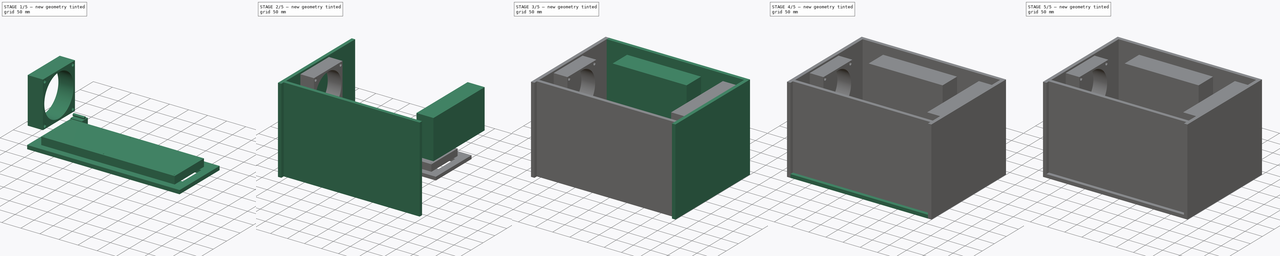
[diagram: build sequence overview — one tinted view per stage of 5, left to right]
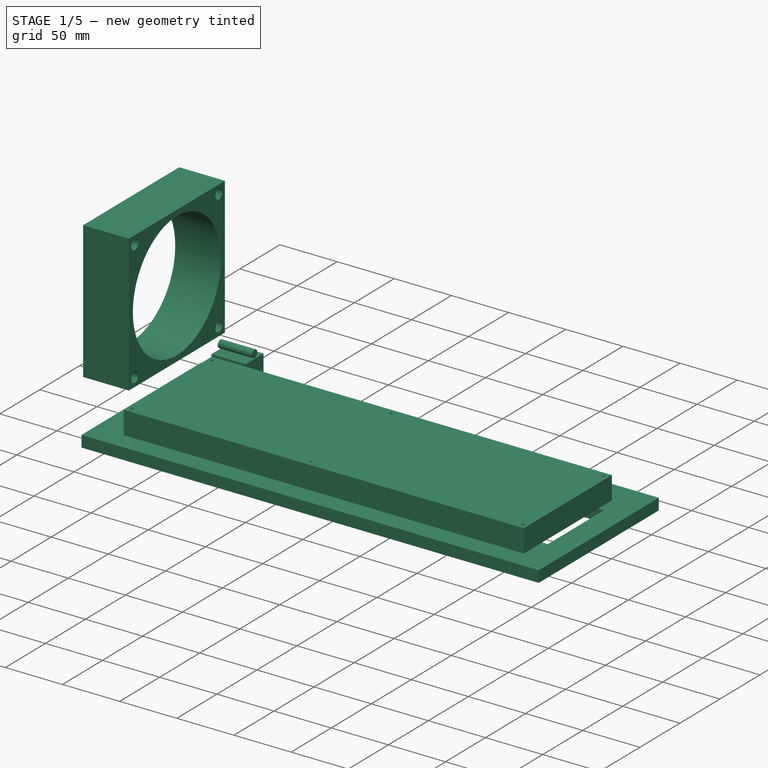
[diagram: stage 1 of 5 — iso view after this stage's code; geometry added in this stage tinted green]
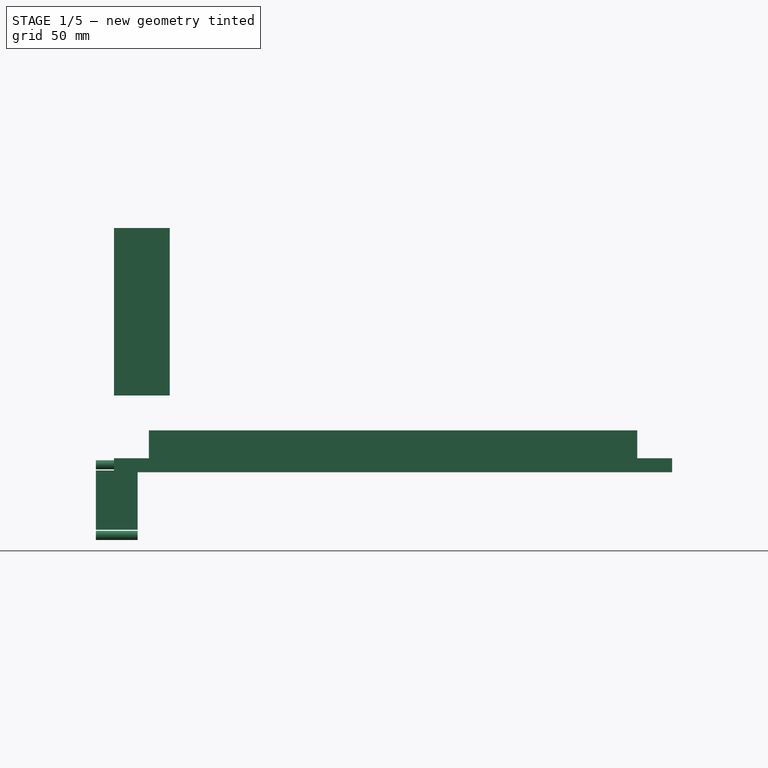
[diagram: stage 1 of 5 — front view after this stage's code; geometry added in this stage tinted green]
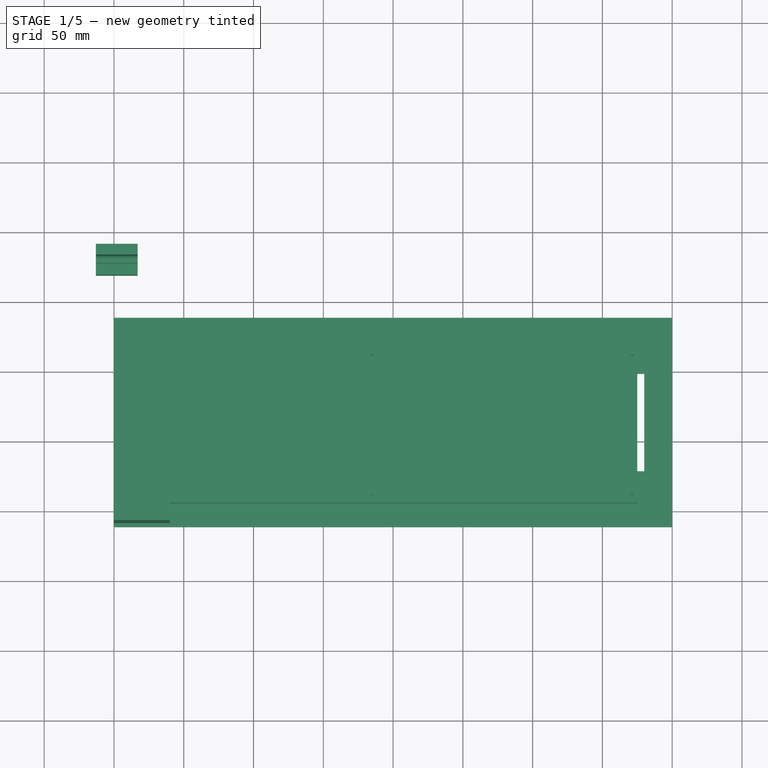
[diagram: stage 1 of 5 — top view after this stage's code; geometry added in this stage tinted green]
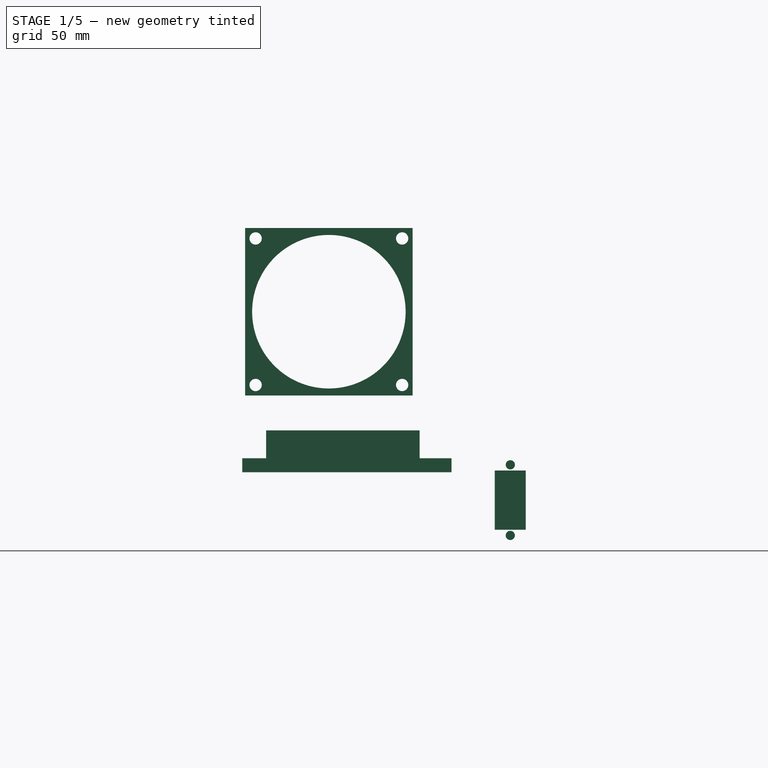
[diagram: stage 1 of 5 — right view after this stage's code; geometry added in this stage tinted green]
FCSTD DOCUMENT  (FreeCAD 0.16R6706 (Git))
Label: MSE-BOX
License: All rights reserved
LicenseURL: http://en.wikipedia.org/wiki/All_rights_reserved
objects: Sketcher::SketchObject×13, PartDesign::Pad×13, Part::Cylinder×2, Part::MultiFuse×2, Part::Cut×2, Part::Box×1
note: 46 computed .brp shape members not serialized (recipe doc carries the construction recipe); baked Part::Feature solids carry a one-line shape summary decoded from their .brp

FEATURE [Sketcher::SketchObject] Sketch011
  Placement = pos=(-200,0,175) rot=(0.57735,0.57735,0.57735;2.0944rad)
  sketch-geometry (9):
    g0: LineSegment StartX=-60 StartY=60 StartZ=0 EndX=60 EndY=60 EndZ=0
    g1: LineSegment StartX=60 StartY=60 StartZ=0 EndX=60 EndY=-60 EndZ=0
    g2: LineSegment StartX=60 StartY=-60 StartZ=0 EndX=-60 EndY=-60 EndZ=0
    g3: LineSegment StartX=-60 StartY=-60 StartZ=0 EndX=-60 EndY=60 EndZ=0
    g4: Circle CenterX=-52.5 CenterY=52.5 CenterZ=0 NormalX=0 NormalY=0 NormalZ=1 Radius=4.4
    g5: Circle CenterX=52.5 CenterY=52.5 CenterZ=0 NormalX=0 NormalY=0 NormalZ=1 Radius=4.4
    g6: Circle CenterX=-52.5 CenterY=-52.5 CenterZ=0 NormalX=0 NormalY=0 NormalZ=1 Radius=4.4
    g7: Circle CenterX=52.5 CenterY=-52.5 CenterZ=0 NormalX=0 NormalY=0 NormalZ=1 Radius=4.4
    g8: Circle CenterX=0 CenterY=0 CenterZ=0 NormalX=0 NormalY=0 NormalZ=1 Radius=55
  constraints (22):
    c: Coincident(g0,g1)
    c: Coincident(g1,g2)
    c: Coincident(g2,g3)
    c: Coincident(g3,g0)
    c: Horizontal(g2)
    c: Vertical(g1)
    c: Vertical(g3)
    c: Symmetric(g0,g0,g-2)
    c: Symmetric(g0,g1,g-1)
    c: DistanceY(g1,g1) = 120
    c: DistanceX(g0,g0) = 120
    c: Symmetric(g6,g7,g-2)
    c: Symmetric(g4,g5,g-2)
    c: Symmetric(g4,g6,g-1)
    c: DistanceX(g6,g7) = 105
    c: DistanceY(g6,g4) = 105
    c: Radius(g6) = 4.4
    c: Radius(g7) = 4.4
    c: Radius(g4) = 4.4
    c: Radius(g5) = 4.4
    c: Coincident(g8,g-1)
    c: Radius(g8) = 55
FEATURE [PartDesign::Pad] Pad011  label="风扇"
  Length = 40
  Length2 = 100
  Placement = pos=(-200,0,175) rot=(0.57735,0.57735,0.57735;2.0944rad)
  Sketch = -> Sketch011
  Type = 0
FEATURE [Sketcher::SketchObject] Sketch012
  Placement = pos=(-213,130,40) rot=(0.57735,0.57735,0.57735;2.0944rad)
  sketch-geometry (6):
    g0: Circle CenterX=0 CenterY=25.3 CenterZ=0 NormalX=0 NormalY=0 NormalZ=1 Radius=3.3
    g1: Circle CenterX=0 CenterY=-25.3 CenterZ=0 NormalX=0 NormalY=0 NormalZ=1 Radius=3.3
    g2: LineSegment StartX=-11.1 StartY=21.25 StartZ=0 EndX=11.1 EndY=21.25 EndZ=0
    g3: LineSegment StartX=11.1 StartY=21.25 StartZ=0 EndX=11.1 EndY=-21.25 EndZ=0
    g4: LineSegment StartX=11.1 StartY=-21.25 StartZ=0 EndX=-11.1 EndY=-21.25 EndZ=0
    g5: LineSegment StartX=-11.1 StartY=-21.25 StartZ=0 EndX=-11.1 EndY=21.25 EndZ=0
  constraints (16):
    c: Symmetric(g0,g1,g-1)
    c: Radius(g0) = 3.3
    c: Equal(g0,g1)
    c: Coincident(g2,g3)
    c: Coincident(g3,g4)
    c: Coincident(g4,g5)
    c: Coincident(g5,g2)
    c: Horizontal(g2)
    c: Horizontal(g4)
    c: Vertical(g3)
    c: Vertical(g5)
    c: Symmetric(g2,g3,g-1)
    c: DistanceY(g3,g3) = 42.5
    c: DistanceY(g1,g0) = 50.6
    c: DistanceX(g2,g2) = 22.2
    c: Symmetric(g2,g2,g-2)
FEATURE [PartDesign::Pad] Pad012  label="品形插座"
  Length = 30
  Length2 = 100
  Placement = pos=(-213,130,40) rot=(0.57735,0.57735,0.57735;2.0944rad)
  Sketch = -> Sketch012
  Type = 0
FEATURE [Sketcher::SketchObject] Sketch013
  Placement = pos=(0,0,60) rot=(0,0,1;0rad)
  sketch-geometry (8):
    g0: LineSegment StartX=-200 StartY=87.8982 StartZ=0 EndX=200 EndY=87.8982 EndZ=0
    g1: LineSegment StartX=200 StartY=87.8982 StartZ=0 EndX=200 EndY=-62.1018 EndZ=0
    g2: LineSegment StartX=200 StartY=-62.1018 StartZ=0 EndX=-200 EndY=-62.1018 EndZ=0
    g3: LineSegment StartX=-200 StartY=-62.1018 StartZ=0 EndX=-200 EndY=87.8982 EndZ=0
    g4: LineSegment StartX=-180 StartY=47.8982 StartZ=0 EndX=180 EndY=47.8982 EndZ=0
    g5: LineSegment StartX=180 StartY=47.8982 StartZ=0 EndX=180 EndY=-22.1018 EndZ=0
    g6: LineSegment StartX=180 StartY=-22.1018 StartZ=0 EndX=-180 EndY=-22.1018 EndZ=0
    g7: LineSegment StartX=-180 StartY=-22.1018 StartZ=0 EndX=-180 EndY=47.8982 EndZ=0
  constraints (23):
    c: Coincident(g0,g1)
    c: Coincident(g1,g2)
    c: Coincident(g2,g3)
    c: Coincident(g3,g0)
    c: Horizontal(g0)
    c: Horizontal(g2)
    c: Vertical(g1)
    c: Vertical(g3)
    c: DistanceX(g0,g0) = 400
    c: Symmetric(g0,g0,g-2)
    c: DistanceY(g1,g1) = 150
    c: Coincident(g4,g5)
    c: Coincident(g5,g6)
    c: Coincident(g6,g7)
    c: Coincident(g7,g4)
    c: Horizontal(g4)
    c: Horizontal(g6)
    c: Vertical(g5)
    c: Vertical(g7)
    c: Distance(g4,g3) = 20
    c: Distance(g4,g1) = 20
    c: Distance(g4,g0) = 40
    c: Distance(g5,g2) = 40
FEATURE [PartDesign::Pad] Pad013  label="串口板支架"
  Length = 10
  Length2 = 100
  Placement = pos=(0,0,60) rot=(0,0,1;0rad)
  Sketch = -> Sketch013
  Type = 0
FEATURE [Sketcher::SketchObject] Sketch014
  Placement = pos=(0,10,70) rot=(0,0,1;0rad)
  sketch-geometry (10):
    g0: LineSegment StartX=-175 StartY=55 StartZ=0 EndX=175 EndY=55 EndZ=0
    g1: LineSegment StartX=175 StartY=55 StartZ=0 EndX=175 EndY=-55 EndZ=0
    g2: LineSegment StartX=175 StartY=-55 StartZ=0 EndX=-175 EndY=-55 EndZ=0
    g3: LineSegment StartX=-175 StartY=-55 StartZ=0 EndX=-175 EndY=55 EndZ=0
    g4: Circle CenterX=170.934 CenterY=50 CenterZ=0 NormalX=0 NormalY=0 NormalZ=1 Radius=1.3
    g5: Circle CenterX=170.934 CenterY=-50 CenterZ=0 NormalX=0 NormalY=0 NormalZ=1 Radius=1.3
    g6: Circle CenterX=-15.0664 CenterY=50 CenterZ=0 NormalX=0 NormalY=0 NormalZ=1 Radius=1.3
    g7: Circle CenterX=-15.0664 CenterY=-50 CenterZ=0 NormalX=0 NormalY=0 NormalZ=1 Radius=1.3
    g8: Circle CenterX=-171.066 CenterY=-50 CenterZ=0 NormalX=0 NormalY=0 NormalZ=1 Radius=1.3
    g9: Circle CenterX=-171.066 CenterY=50 CenterZ=0 NormalX=0 NormalY=0 NormalZ=1 Radius=1.3
  constraints (26):
    c: Coincident(g0,g1)
    c: Coincident(g1,g2)
    c: Coincident(g2,g3)
    c: Coincident(g3,g0)
    c: Horizontal(g0)
    c: Horizontal(g2)
    c: Vertical(g1)
    c: Vertical(g3)
    c: DistanceX(g0,g0) = 350
    c: DistanceY(g1,g1) = 110
    c: Symmetric(g0,g0,g-2)
    c: Radius(g4) = 1.3
    c: Radius(g5) = 1.3
    c: DistanceY(g5,g4) = 100
    c: Symmetric(g0,g1,g-1)
    c: Symmetric(g4,g5,g-1)
    c: Symmetric(g6,g7,g-1)
    c: Symmetric(g9,g8,g-1)
    c: DistanceY(g8,g9) = 100
    c: DistanceY(g7,g6) = 100
    c: Radius(g9) = 1.3
    c: Radius(g8) = 1.3
    c: Radius(g7) = 1.3
    c: Radius(g6) = 1.3
    c: DistanceX(g8,g7) = 156
    c: DistanceX(g7,g5) = 186
FEATURE [PartDesign::Pad] Pad014  label="串口板模型"
  Length = 20
  Length2 = 100
  Placement = pos=(0,10,70) rot=(0,0,1;0rad)
  Sketch = -> Sketch014
  Type = 0
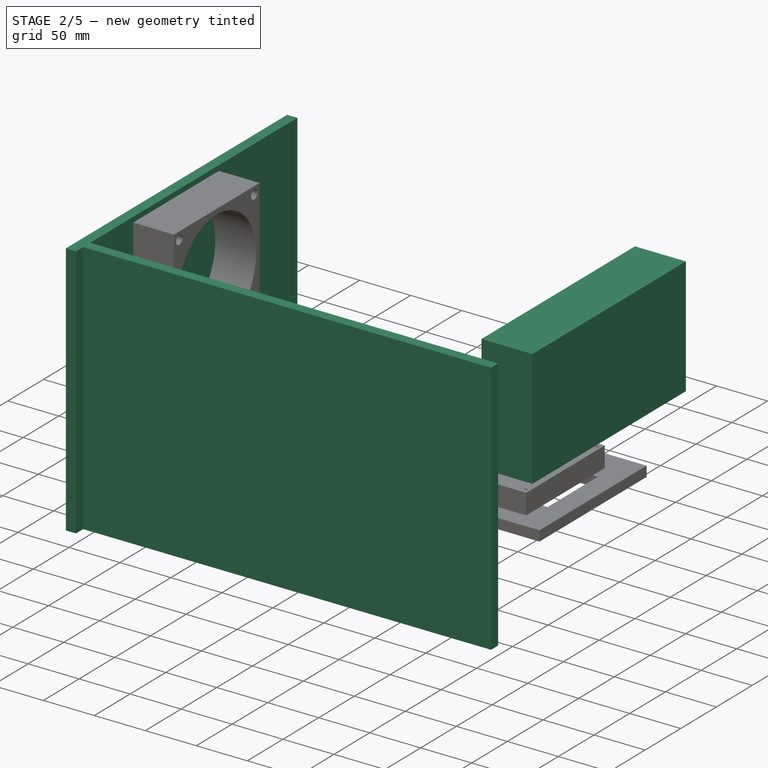
[diagram: stage 2 of 5 — iso view after this stage's code; geometry added in this stage tinted green]
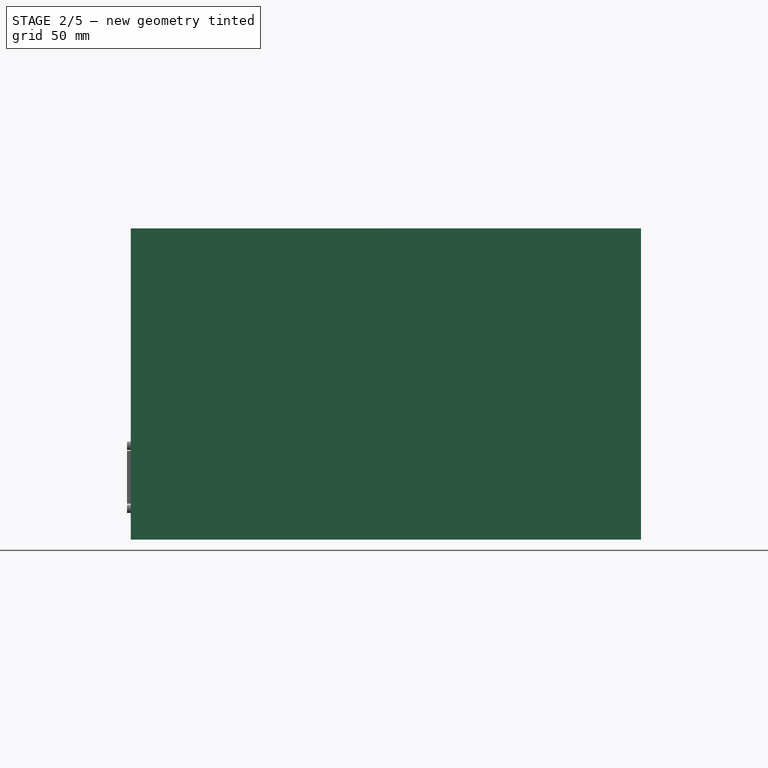
[diagram: stage 2 of 5 — front view after this stage's code; geometry added in this stage tinted green]
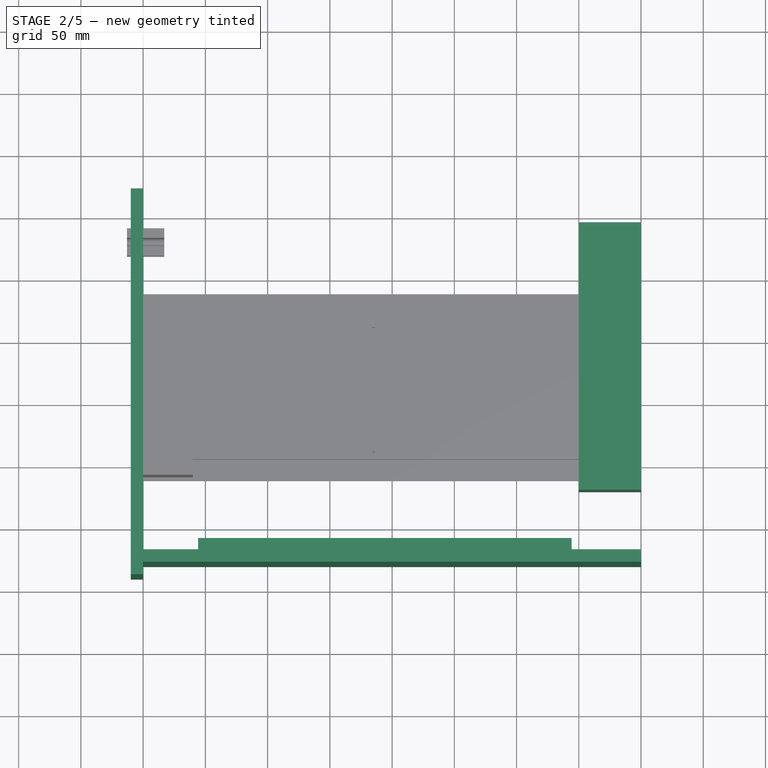
[diagram: stage 2 of 5 — top view after this stage's code; geometry added in this stage tinted green]
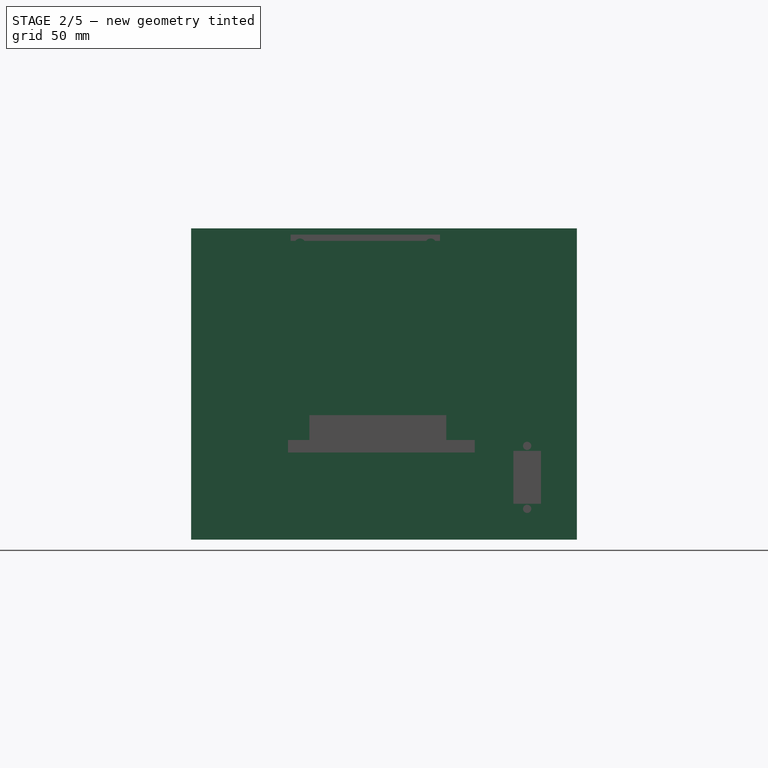
[diagram: stage 2 of 5 — right view after this stage's code; geometry added in this stage tinted green]
FEATURE [Sketcher::SketchObject] Sketch006  label="左侧面板"
  Placement = pos=(-210,0,0) rot=(0.57735,0.57735,0.57735;2.0944rad)
  sketch-geometry (4):
    g0: LineSegment StartX=-140 StartY=240 StartZ=0 EndX=170 EndY=240 EndZ=0
    g1: LineSegment StartX=170 StartY=240 StartZ=0 EndX=170 EndY=-10 EndZ=0
    g2: LineSegment StartX=170 StartY=-10 StartZ=0 EndX=-140 EndY=-10 EndZ=0
    g3: LineSegment StartX=-140 StartY=-10 StartZ=0 EndX=-140 EndY=240 EndZ=0
  constraints (12):
    c: Coincident(g0,g1)
    c: Coincident(g1,g2)
    c: Coincident(g2,g3)
    c: Coincident(g3,g0)
    c: Horizontal(g0)
    c: Horizontal(g2)
    c: Vertical(g1)
    c: Vertical(g3)
    c: DistanceY(g-1,g1) = -10
    c: DistanceX(g-1,g0) = 170
    c: DistanceX(g0,g-1) = 140
    c: DistanceY(g1,g1) = 250
FEATURE [PartDesign::Pad] Pad006  label="左侧"
  Length = 10
  Length2 = 100
  Placement = pos=(-210,0,0) rot=(0.57735,0.57735,0.57735;2.0944rad)
  Sketch = -> Sketch006
  Type = 0
FEATURE [Sketcher::SketchObject] Sketch007
  Placement = pos=(0,-120,0) rot=(1,0,0;1.5708rad)
  sketch-geometry (4):
    g0: LineSegment StartX=-200 StartY=240 StartZ=0 EndX=200 EndY=240 EndZ=0
    g1: LineSegment StartX=200 StartY=240 StartZ=0 EndX=200 EndY=-10 EndZ=0
    g2: LineSegment StartX=200 StartY=-10 StartZ=0 EndX=-200 EndY=-10 EndZ=0
    g3: LineSegment StartX=-200 StartY=-10 StartZ=0 EndX=-200 EndY=240 EndZ=0
  constraints (12):
    c: Coincident(g0,g1)
    c: Coincident(g1,g2)
    c: Coincident(g2,g3)
    c: Coincident(g3,g0)
    c: Horizontal(g0)
    c: Horizontal(g2)
    c: Vertical(g1)
    c: Vertical(g3)
    c: DistanceX(g0,g0) = 400
    c: Symmetric(g0,g0,g-2)
    c: DistanceY(g1,g1) = 250
    c: DistanceY(g-1,g1) = -10
FEATURE [PartDesign::Pad] Pad007  label="前面板"
  Length = 10
  Length2 = 100
  Placement = pos=(0,-120,0) rot=(1,0,0;1.5708rad)
  Sketch = -> Sketch007
  Type = 0
FEATURE [Part::Box] Box  label="5V电源"
  Height = 115
  Length = 50
  Placement = pos=(150,-72,115) rot=(0,0,1;0rad)
  Width = 215
FEATURE [Sketcher::SketchObject] Sketch009
  Placement = pos=(144.196,-120,190) rot=(-0.57735,0.57735,0.57735;2.0944rad)
  sketch-geometry (82):
    g0: LineSegment StartX=0 StartY=300 StartZ=0 EndX=121 EndY=300 EndZ=0
    g1: LineSegment StartX=121 StartY=300 StartZ=0 EndX=121 EndY=0 EndZ=0
    g2: LineSegment StartX=121 StartY=0 StartZ=0 EndX=0 EndY=0 EndZ=0
    g3: LineSegment StartX=0 StartY=0 StartZ=0 EndX=0 EndY=300 EndZ=0
    g4: Circle CenterX=11.81 CenterY=19.93 CenterZ=0 NormalX=0 NormalY=0 NormalZ=1 Radius=7.1
    g5: Circle CenterX=11.81 CenterY=39.93 CenterZ=0 NormalX=0 NormalY=0 NormalZ=1 Radius=7.1
    g6: Circle CenterX=11.81 CenterY=59.93 CenterZ=0 NormalX=0 NormalY=0 NormalZ=1 Radius=7.1
    g7: Circle CenterX=11.81 CenterY=79.93 CenterZ=0 NormalX=0 NormalY=0 NormalZ=1 Radius=7.1
    g8: Circle CenterX=11.81 CenterY=99.93 CenterZ=0 NormalX=0 NormalY=0 NormalZ=1 Radius=7.1
    g9: Circle CenterX=11.81 CenterY=119.93 CenterZ=0 NormalX=0 NormalY=0 NormalZ=1 Radius=7.1
    g10: Circle CenterX=11.81 CenterY=146.89 CenterZ=0 NormalX=0 NormalY=0 NormalZ=1 Radius=7.1
    g11: Circle CenterX=11.81 CenterY=166.89 CenterZ=0 NormalX=0 NormalY=0 NormalZ=1 Radius=7.1
    g12: Circle CenterX=11.81 CenterY=186.89 CenterZ=0 NormalX=0 NormalY=0 NormalZ=1 Radius=7.1
    g13: Circle CenterX=11.81 CenterY=246.89 CenterZ=0 NormalX=0 NormalY=0 NormalZ=1 Radius=7.1
    g14: Circle CenterX=109.58 CenterY=246.89 CenterZ=0 NormalX=0 NormalY=0 NormalZ=1 Radius=7.1
    g15: Circle CenterX=11.81 CenterY=226.89 CenterZ=0 NormalX=0 NormalY=0 NormalZ=1 Radius=7.1
    g16: Circle CenterX=11.81 CenterY=206.89 CenterZ=0 NormalX=0 NormalY=0 NormalZ=1 Radius=7.1
    g17: Circle CenterX=109.58 CenterY=186.89 CenterZ=0 NormalX=0 NormalY=0 NormalZ=1 Radius=7.1
    g18: Circle CenterX=109.58 CenterY=226.89 CenterZ=0 NormalX=0 NormalY=0 NormalZ=1 Radius=7.1
    g19: Circle CenterX=109.58 CenterY=206.89 CenterZ=0 NormalX=0 NormalY=0 NormalZ=1 Radius=7.1
    g20: Circle CenterX=109.58 CenterY=166.89 CenterZ=0 NormalX=0 NormalY=0 NormalZ=1 Radius=7.1
    g21: Circle CenterX=109.63 CenterY=146.89 CenterZ=0 NormalX=0 NormalY=0 NormalZ=1 Radius=7.1
    g22: Circle CenterX=109.63 CenterY=119.95 CenterZ=0 NormalX=0 NormalY=0 NormalZ=1 Radius=7.1
    g23: Circle CenterX=109.63 CenterY=99.95 CenterZ=0 NormalX=0 NormalY=0 NormalZ=1 Radius=7.1
    g24: Circle CenterX=109.63 CenterY=79.95 CenterZ=0 NormalX=0 NormalY=0 NormalZ=1 Radius=7.1
    g25: Circle CenterX=109.63 CenterY=59.95 CenterZ=0 NormalX=0 NormalY=0 NormalZ=1 Radius=7.1
    g26: Circle CenterX=109.63 CenterY=39.95 CenterZ=0 NormalX=0 NormalY=0 NormalZ=1 Radius=7.1
    g27: Circle CenterX=109.63 CenterY=19.95 CenterZ=0 NormalX=0 NormalY=0 NormalZ=1 Radius=7.1
    g28: Circle CenterX=5.9944 CenterY=5.9944 CenterZ=0 NormalX=0 NormalY=0 NormalZ=1 Radius=1.3
    g29: Circle CenterX=5.9944 CenterY=134 CenterZ=0 NormalX=0 NormalY=0 NormalZ=1 Radius=1.3
    g30: Circle CenterX=5.9944 CenterY=269.79 CenterZ=0 NormalX=0 NormalY=0 NormalZ=1 Radius=1.3
    g31: Circle CenterX=115 CenterY=269.79 CenterZ=0 NormalX=0 NormalY=0 NormalZ=1 Radius=1.3
    g32: Circle CenterX=115 CenterY=5.9944 CenterZ=0 NormalX=0 NormalY=0 NormalZ=1 Radius=1.3
    g33: Circle CenterX=115 CenterY=134 CenterZ=0 NormalX=0 NormalY=0 NormalZ=1 Radius=1.3
    g34: LineSegment StartX=33.87 StartY=26.57 StartZ=0 EndX=51.87 EndY=26.57 EndZ=0
    g35: LineSegment StartX=51.87 StartY=26.57 StartZ=0 EndX=51.87 EndY=19.57 EndZ=0
    g36: LineSegment StartX=51.87 StartY=19.57 StartZ=0 EndX=33.87 EndY=19.57 EndZ=0
    g37: LineSegment StartX=33.87 StartY=19.57 StartZ=0 EndX=33.87 EndY=26.57 EndZ=0
    g38: LineSegment StartX=33.87 StartY=66.47 StartZ=0 EndX=51.87 EndY=66.47 EndZ=0
    g39: LineSegment StartX=51.87 StartY=66.47 StartZ=0 EndX=51.87 EndY=59.47 EndZ=0
    g40: LineSegment StartX=51.87 StartY=59.47 StartZ=0 EndX=33.87 EndY=59.47 EndZ=0
    g41: LineSegment StartX=33.87 StartY=59.47 StartZ=0 EndX=33.87 EndY=66.47 EndZ=0
    g42: LineSegment StartX=33.87 StartY=86.38 StartZ=0 EndX=51.87 EndY=86.38 EndZ=0
    g43: LineSegment StartX=51.87 StartY=86.38 StartZ=0 EndX=51.87 EndY=79.38 EndZ=0
    g44: LineSegment StartX=51.87 StartY=79.38 StartZ=0 EndX=33.87 EndY=79.38 EndZ=0
    g45: LineSegment StartX=33.87 StartY=79.38 StartZ=0 EndX=33.87 EndY=86.38 EndZ=0
    g46: LineSegment StartX=33.87 StartY=46.4 StartZ=0 EndX=51.87 EndY=46.4 EndZ=0
    g47: LineSegment StartX=51.87 StartY=46.4 StartZ=0 EndX=51.87 EndY=39.4 EndZ=0
    g48: LineSegment StartX=51.87 StartY=39.4 StartZ=0 EndX=33.87 EndY=39.4 EndZ=0
    g49: LineSegment StartX=33.87 StartY=39.4 StartZ=0 EndX=33.87 EndY=46.4 EndZ=0
    g50: LineSegment StartX=33.87 StartY=153.36 StartZ=0 EndX=51.87 EndY=153.36 EndZ=0
    g51: LineSegment StartX=51.87 StartY=153.36 StartZ=0 EndX=51.87 EndY=146.36 EndZ=0
    g52: LineSegment StartX=51.87 StartY=146.36 StartZ=0 EndX=33.87 EndY=146.36 EndZ=0
    g53: LineSegment StartX=33.87 StartY=146.36 StartZ=0 EndX=33.87 EndY=153.36 EndZ=0
    g54: LineSegment StartX=33.87 StartY=126.46 StartZ=0 EndX=51.87 EndY=126.46 EndZ=0
    g55: LineSegment StartX=51.87 StartY=126.46 StartZ=0 EndX=51.87 EndY=119.46 EndZ=0
    g56: LineSegment StartX=51.87 StartY=119.46 StartZ=0 EndX=33.87 EndY=119.46 EndZ=0
    g57: LineSegment StartX=33.87 StartY=119.46 StartZ=0 EndX=33.87 EndY=126.46 EndZ=0
    g58: LineSegment StartX=33.87 StartY=106.43 StartZ=0 EndX=51.87 EndY=106.43 EndZ=0
    g59: LineSegment StartX=51.87 StartY=106.43 StartZ=0 EndX=51.87 EndY=99.43 EndZ=0
    g60: LineSegment StartX=51.87 StartY=99.43 StartZ=0 EndX=33.87 EndY=99.43 EndZ=0
    g61: LineSegment StartX=33.87 StartY=99.43 StartZ=0 EndX=33.87 EndY=106.43 EndZ=0
    g62: LineSegment StartX=33.87 StartY=173.36 StartZ=0 EndX=51.87 EndY=173.36 EndZ=0
    g63: LineSegment StartX=51.87 StartY=173.36 StartZ=0 EndX=51.87 EndY=166.36 EndZ=0
    g64: LineSegment StartX=51.87 StartY=166.36 StartZ=0 EndX=33.87 EndY=166.36 EndZ=0
    g65: LineSegment StartX=33.87 StartY=166.36 StartZ=0 EndX=33.87 EndY=173.36 EndZ=0
    g66: LineSegment StartX=51.87 StartY=213.34 StartZ=0 EndX=33.87 EndY=213.34 EndZ=0
    g67: LineSegment StartX=33.87 StartY=213.34 StartZ=0 EndX=33.87 EndY=206.34 EndZ=0
    g68: LineSegment StartX=33.87 StartY=206.34 StartZ=0 EndX=51.87 EndY=206.34 EndZ=0
    g69: LineSegment StartX=51.87 StartY=206.34 StartZ=0 EndX=51.87 EndY=213.34 EndZ=0
    g70: LineSegment StartX=33.87 StartY=193.39 StartZ=0 EndX=51.87 EndY=193.39 EndZ=0
    g71: LineSegment StartX=51.87 StartY=193.39 StartZ=0 EndX=51.87 EndY=186.39 EndZ=0
    g72: LineSegment StartX=51.87 StartY=186.39 StartZ=0 EndX=33.87 EndY=186.39 EndZ=0
    g73: LineSegment StartX=33.87 StartY=186.39 StartZ=0 EndX=33.87 EndY=193.39 EndZ=0
    g74: LineSegment StartX=33.87 StartY=253.52 StartZ=0 EndX=51.87 EndY=253.52 EndZ=0
    g75: LineSegment StartX=51.87 StartY=253.52 StartZ=0 EndX=51.87 EndY=246.52 EndZ=0
    g76: LineSegment StartX=51.87 StartY=246.52 StartZ=0 EndX=33.87 EndY=246.52 EndZ=0
    g77: LineSegment StartX=33.87 StartY=246.52 StartZ=0 EndX=33.87 EndY=253.52 EndZ=0
    g78: LineSegment StartX=33.87 StartY=233.4 StartZ=0 EndX=51.87 EndY=233.4 EndZ=0
    g79: LineSegment StartX=51.87 StartY=233.4 StartZ=0 EndX=51.87 EndY=226.4 EndZ=0
    g80: LineSegment StartX=51.87 StartY=226.4 StartZ=0 EndX=33.87 EndY=226.4 EndZ=0
    g81: LineSegment StartX=33.87 StartY=226.4 StartZ=0 EndX=33.87 EndY=233.4 EndZ=0
  constraints (234):
    c: Coincident(g0,g1)
    c: Coincident(g1,g2)
    c: Coincident(g2,g3)
    c: Coincident(g3,g0)
    c: Horizontal(g0)
    c: Horizontal(g2)
    c: Vertical(g1)
    c: Vertical(g3)
    c: Coincident(g2,g-1)
    c: DistanceX(g0) = 121
    c: DistanceY(g0) = 300
    c: Radius(g4) = 7.1
    c: DistanceX(g4) = 11.81
    c: DistanceY(g4) = 19.93
    c: Equal(g5,g6)
    c: DistanceY(g5) = 39.93
    c: DistanceY(g6) = 59.93
    c: Equal(g6,g7)
    c: DistanceY(g7) = 79.93
    c: Equal(g7,g8)
    c: Equal(g8,g9)
    c: Equal(g9,g10)
    c: DistanceY(g8) = 99.93
    c: DistanceY(g9) = 119.93
    c: DistanceY(g10) = 146.89
    c: Equal(g10,g11)
    c: Equal(g11,g12)
    c: DistanceY(g11) = 166.89
    c: DistanceY(g12) = 186.89
    c: Equal(g12,g16)
    c: Equal(g16,g15)
    c: Equal(g15,g14)
    c: Equal(g14,g13)
    c: DistanceY(g16) = 206.89
    c: DistanceY(g15) = 226.89
    c: DistanceY(g13) = 246.89
    c: DistanceX(g14) = 109.58
    c: DistanceY(g14) = 246.89
    c: DistanceX(g18) = 109.58
    c: DistanceY(g18) = 226.89
    c: Equal(g14,g18)
    c: Equal(g18,g19)
    c: Equal(g19,g17)
    c: Equal(g17,g20)
    c: Equal(g20,g21)
    c: Equal(g21,g22)
    c: Equal(g22,g23)
    c: Equal(g23,g24)
    c: Equal(g24,g25)
    c: Equal(g25,g26)
    c: Equal(g26,g27)
    c: DistanceX(g19) = 109.58
    c: DistanceY(g19) = 206.89
    c: DistanceX(g27) = 109.63
    c: DistanceY(g27) = 19.95
    c: DistanceX(g26) = 109.63
    c: DistanceY(g26) = 39.95
    c: DistanceX(g25) = 109.63
    c: DistanceY(g25) = 59.95
    c: DistanceX(g24) = 109.63
    c: DistanceY(g24) = 79.95
    c: DistanceX(g23) = 109.63
    c: DistanceY(g23) = 99.95
    c: DistanceX(g22) = 109.63
    c: DistanceY(g22) = 119.95
    c: DistanceX(g21) = 109.63
    c: DistanceY(g21) = 146.89
    c: DistanceX(g20) = 109.58
    c: DistanceY(g20) = 166.89
    c: DistanceX(g17) = 109.58
    c: DistanceY(g17) = 186.89
    c: Radius(g28) = 1.3
    c: DistanceX(g28) = 5.9944
    c: DistanceY(g28) = 5.9944
    c: Equal(g28,g29)
    c: Equal(g29,g30)
    c: Equal(g30,g32)
    c: Equal(g32,g33)
    c: Equal(g33,g31)
    c: Radius(g5) = 7.1
    c: DistanceX(g29) = 5.9944
    c: DistanceY(g29) = 134
    c: DistanceX(g30) = 5.9944
    c: DistanceY(g30) = 269.79
    c: DistanceX(g32) = 115
    c: DistanceY(g32) = 5.9944
    c: DistanceX(g33) = 115
    c: DistanceY(g33) = 134
    c: DistanceX(g31) = 115
    c: DistanceY(g31) = 269.79
    c: Coincident(g34,g35)
    c: Coincident(g35,g36)
    c: Coincident(g36,g37)
    c: Coincident(g37,g34)
    c: Horizontal(g34)
    c: Horizontal(g36)
    c: Vertical(g35)
    c: Vertical(g37)
    c: DistanceX(g34) = 51.87
    c: DistanceY(g34) = 26.57
    c: Coincident(g38,g39)
    c: Coincident(g39,g40)
    c: Coincident(g40,g41)
    c: Coincident(g41,g38)
    c: Horizontal(g38)
    c: Horizontal(g40)
    c: Vertical(g39)
    c: Vertical(g41)
    c: DistanceX(g36,g36) = 18
    c: DistanceY(g35,g35) = 7
    c: Equal(g36,g38)
    c: Equal(g35,g39)
    c: Coincident(g42,g43)
    c: Coincident(g43,g44)
    c: Coincident(g44,g45)
    c: Coincident(g45,g42)
    c: Horizontal(g42)
    c: Horizontal(g44)
    c: Vertical(g43)
    c: Vertical(g45)
    c: Coincident(g46,g47)
    c: Coincident(g47,g48)
    c: Coincident(g48,g49)
    c: Coincident(g49,g46)
    c: Horizontal(g46)
    c: Horizontal(g48)
    c: Vertical(g47)
    c: Vertical(g49)
    c: Coincident(g50,g51)
    c: Coincident(g51,g52)
    c: Coincident(g52,g53)
    c: Coincident(g53,g50)
    c: Horizontal(g50)
    c: Horizontal(g52)
    c: Vertical(g51)
    c: Vertical(g53)
    c: Coincident(g54,g55)
    c: Coincident(g55,g56)
    c: Coincident(g56,g57)
    c: Coincident(g57,g54)
    c: Horizontal(g54)
    c: Horizontal(g56)
    c: Vertical(g55)
    c: Vertical(g57)
    c: Coincident(g58,g59)
    c: Coincident(g59,g60)
    c: Coincident(g60,g61)
    c: Coincident(g61,g58)
    c: Horizontal(g58)
    c: Horizontal(g60)
    c: Vertical(g59)
    c: Vertical(g61)
    c: Coincident(g62,g63)
    c: Coincident(g63,g64)
    c: Coincident(g64,g65)
    c: Coincident(g65,g62)
    c: Horizontal(g62)
    c: Horizontal(g64)
    c: Vertical(g63)
    c: Vertical(g65)
    c: Coincident(g66,g67)
    c: Coincident(g67,g68)
    c: Coincident(g68,g69)
    c: Coincident(g69,g66)
    c: Horizontal(g66)
    c: Horizontal(g68)
    c: Vertical(g67)
    c: Vertical(g69)
    c: Coincident(g70,g71)
    c: Coincident(g71,g72)
    c: Coincident(g72,g73)
    c: Coincident(g73,g70)
    c: Horizontal(g70)
    c: Horizontal(g72)
    c: Vertical(g71)
    c: Vertical(g73)
    c: Coincident(g74,g75)
    c: Coincident(g75,g76)
    c: Coincident(g76,g77)
    c: Coincident(g77,g74)
    c: Horizontal(g74)
    c: Horizontal(g76)
    c: Vertical(g75)
    c: Vertical(g77)
    c: Coincident(g78,g79)
    c: Coincident(g79,g80)
    c: Coincident(g80,g81)
    c: Coincident(g81,g78)
    c: Horizontal(g78)
    c: Horizontal(g80)
    c: Vertical(g79)
    c: Vertical(g81)
    c: Equal(g38,g42)
    c: Equal(g42,g58)
    c: Equal(g58,g46)
    c: Equal(g39,g59)
    c: Equal(g59,g43)
    c: Equal(g43,g47)
    c: DistanceX(g38) = 51.87
    c: DistanceY(g38) = 66.47
    c: DistanceX(g58) = 51.87
    c: DistanceY(g58) = 106.43
    c: DistanceX(g42) = 51.87
    c: DistanceY(g42) = 86.38
    c: DistanceX(g46) = 51.87
    c: DistanceY(g46) = 46.4
    c: Equal(g36,g64)
    c: Equal(g64,g54)
    c: Equal(g54,g50)
    c: Equal(g50,g70)
    c: Equal(g70,g66)
    c: Equal(g66,g78)
    c: Equal(g78,g74)
    c: Equal(g35,g63)
    c: Equal(g63,g55)
    c: Equal(g55,g51)
    c: Equal(g51,g71)
    c: Equal(g71,g67)
    c: Equal(g67,g79)
    c: Equal(g79,g77)
    c: DistanceX(g62) = 51.87
    c: DistanceY(g62) = 173.36
    c: DistanceX(g54) = 51.87
    c: DistanceY(g54) = 126.46
    c: DistanceX(g50) = 51.87
    c: DistanceY(g50) = 153.36
    c: DistanceX(g70) = 51.87
    c: DistanceY(g70) = 193.39
    c: DistanceX(g78) = 51.87
    c: DistanceY(g78) = 233.4
    c: DistanceX(g74) = 51.87
    c: DistanceY(g74) = 253.52
    c: DistanceX(g66) = 51.87
    c: DistanceY(g66) = 213.34
FEATURE [PartDesign::Pad] Pad009  label="电源板"
  Length = 10
  Length2 = 100
  Placement = pos=(144.196,-120,190) rot=(-0.57735,0.57735,0.57735;2.0944rad)
  Sketch = -> Sketch009
  Type = 0
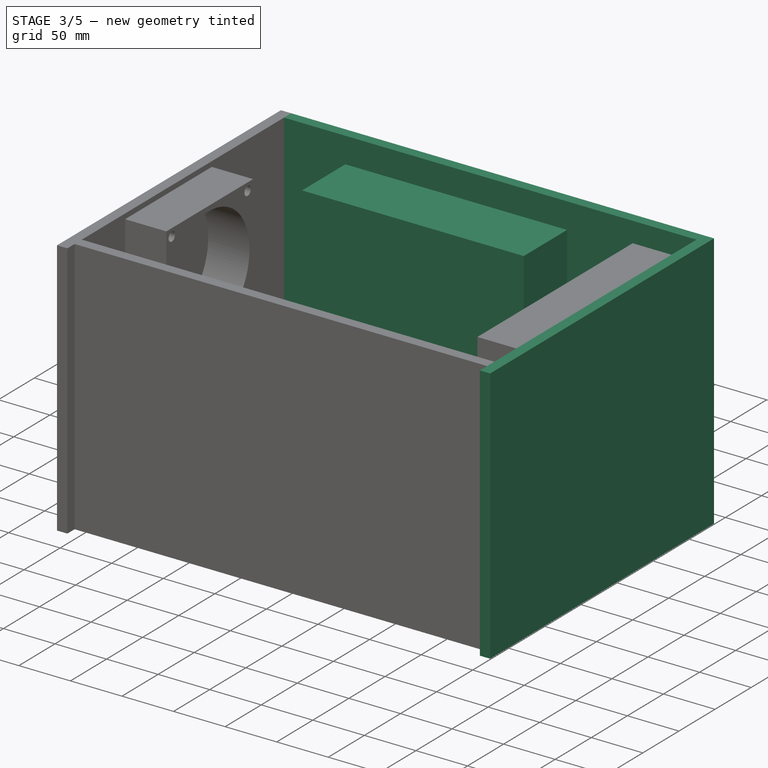
[diagram: stage 3 of 5 — iso view after this stage's code; geometry added in this stage tinted green]
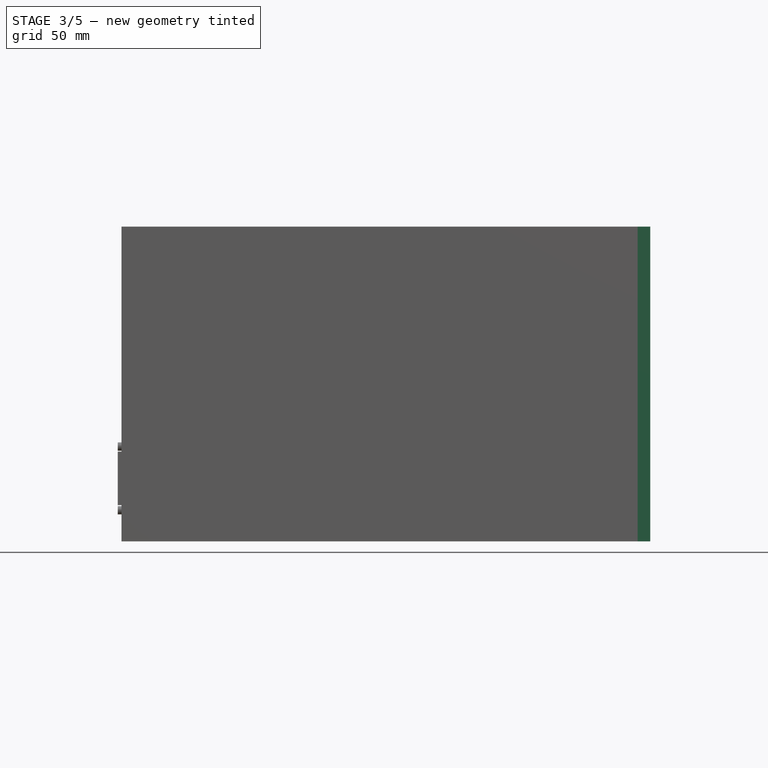
[diagram: stage 3 of 5 — front view after this stage's code; geometry added in this stage tinted green]
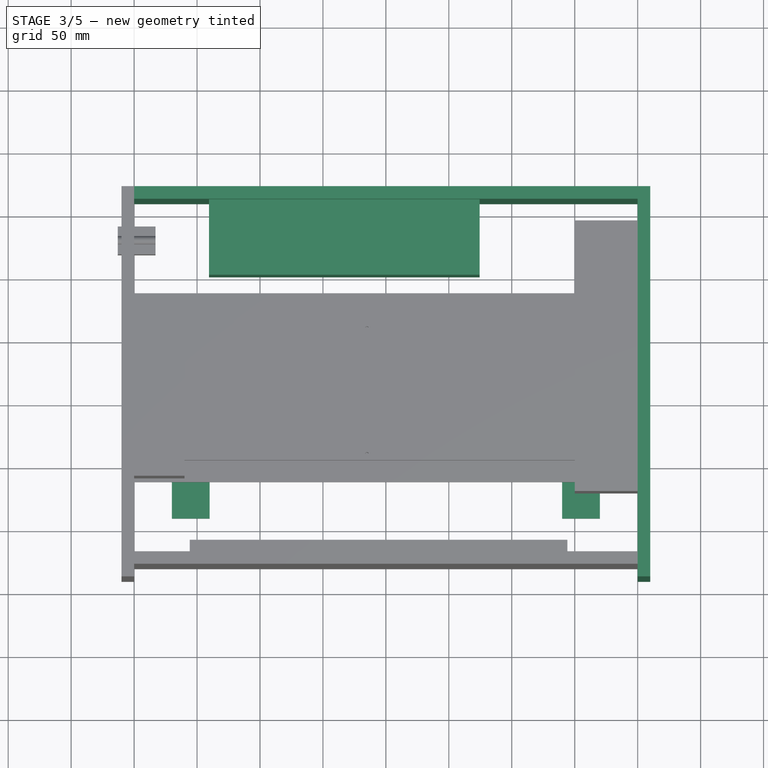
[diagram: stage 3 of 5 — top view after this stage's code; geometry added in this stage tinted green]
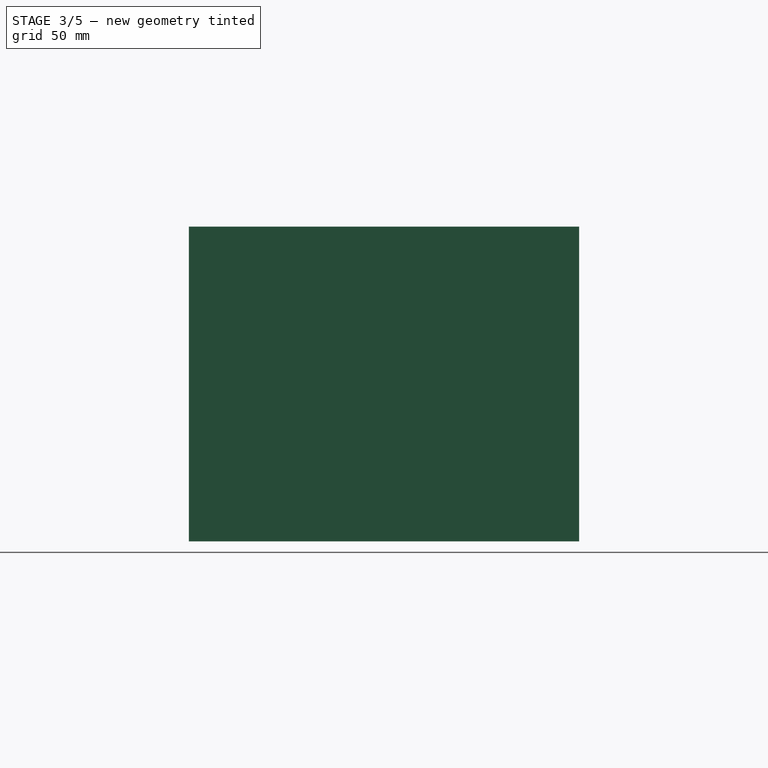
[diagram: stage 3 of 5 — right view after this stage's code; geometry added in this stage tinted green]
FEATURE [Sketcher::SketchObject] Sketch001
  sketch-geometry (8):
    g0: LineSegment StartX=140 StartY=-36 StartZ=0 EndX=170 EndY=-36 EndZ=0
    g1: LineSegment StartX=170 StartY=-36 StartZ=0 EndX=170 EndY=-90 EndZ=0
    g2: LineSegment StartX=170 StartY=-90 StartZ=0 EndX=140 EndY=-90 EndZ=0
    g3: LineSegment StartX=140 StartY=-90 StartZ=0 EndX=140 EndY=-36 EndZ=0
    g4: LineSegment StartX=-170 StartY=-36 StartZ=0 EndX=-140 EndY=-36 EndZ=0
    g5: LineSegment StartX=-140 StartY=-36 StartZ=0 EndX=-140 EndY=-90 EndZ=0
    g6: LineSegment StartX=-140 StartY=-90 StartZ=0 EndX=-170 EndY=-90 EndZ=0
    g7: LineSegment StartX=-170 StartY=-90 StartZ=0 EndX=-170 EndY=-36 EndZ=0
  constraints (21):
    c: Coincident(g0,g1)
    c: Coincident(g1,g2)
    c: Coincident(g3,g0)
    c: Horizontal(g0)
    c: Horizontal(g2)
    c: Vertical(g1)
    c: Vertical(g3)
    c: DistanceY(g1,g1) = 54
    c: DistanceX(g0,g0) = 30
    c: Coincident(g4,g5)
    c: Coincident(g5,g6)
    c: Coincident(g6,g7)
    c: Coincident(g7,g4)
    c: Horizontal(g4)
    c: Horizontal(g6)
    c: Vertical(g5)
    c: Vertical(g7)
    c: DistanceX(g5) = -140
    c: DistanceY(g5) = -90
    c: DistanceX(g6,g6) = 30
    c: DistanceY(g7,g7) = 54
FEATURE [PartDesign::Pad] Pad001
  Length = 10
  Length2 = 100
  Sketch = -> Sketch001
  Type = 0
FEATURE [Sketcher::SketchObject] Sketch003  label="后面板1"
  Placement = pos=(0,170,0) rot=(1,0,0;1.5708rad)
  sketch-geometry (4):
    g0: LineSegment StartX=-200 StartY=240 StartZ=0 EndX=200 EndY=240 EndZ=0
    g1: LineSegment StartX=200 StartY=240 StartZ=0 EndX=200 EndY=-10 EndZ=0
    g2: LineSegment StartX=200 StartY=-10 StartZ=0 EndX=-200 EndY=-10 EndZ=0
    g3: LineSegment StartX=-200 StartY=-10 StartZ=0 EndX=-200 EndY=240 EndZ=0
  constraints (12):
    c: Coincident(g0,g1)
    c: Coincident(g1,g2)
    c: Coincident(g2,g3)
    c: Coincident(g3,g0)
    c: Horizontal(g0)
    c: Horizontal(g2)
    c: Vertical(g1)
    c: Vertical(g3)
    c: DistanceX(g0,g0) = 400
    c: Symmetric(g0,g0,g-2)
    c: DistanceY(g1,g1) = 250
    c: DistanceY(g1,g-1) = 10
FEATURE [PartDesign::Pad] Pad003  label="后面板"
  Length = 10
  Length2 = 100
  Placement = pos=(0,170,0) rot=(1,0,0;1.5708rad)
  Sketch = -> Sketch003
  Type = 0
FEATURE [Sketcher::SketchObject] Sketch004  label="12V电源001"
  Placement = pos=(-33,160,50) rot=(1,0,0;1.5708rad)
  sketch-geometry (4):
    g0: LineSegment StartX=-107.5 StartY=165 StartZ=0 EndX=107.5 EndY=165 EndZ=0
    g1: LineSegment StartX=107.5 StartY=165 StartZ=0 EndX=107.5 EndY=50 EndZ=0
    g2: LineSegment StartX=107.5 StartY=50 StartZ=0 EndX=-107.5 EndY=50 EndZ=0
    g3: LineSegment StartX=-107.5 StartY=50 StartZ=0 EndX=-107.5 EndY=165 EndZ=0
  constraints (12):
    c: Coincident(g0,g1)
    c: Coincident(g1,g2)
    c: Coincident(g2,g3)
    c: Coincident(g3,g0)
    c: Horizontal(g0)
    c: Horizontal(g2)
    c: Vertical(g1)
    c: Vertical(g3)
    c: DistanceX(g0,g0) = 215
    c: DistanceY(g1,g1) = 115
    c: Symmetric(g0,g0,g-2)
    c: DistanceY(g1) = 50
FEATURE [PartDesign::Pad] Pad004  label="12V电源"
  Length = 60
  Length2 = 100
  Placement = pos=(-33,160,50) rot=(1,0,0;1.5708rad)
  Sketch = -> Sketch004
  Type = 0
FEATURE [Sketcher::SketchObject] Sketch005  label="右侧板图"
  Placement = pos=(200,0,0) rot=(0.57735,0.57735,0.57735;2.0944rad)
  sketch-geometry (4):
    g0: LineSegment StartX=-140 StartY=240 StartZ=0 EndX=170 EndY=240 EndZ=0
    g1: LineSegment StartX=170 StartY=-10 StartZ=0 EndX=-140 EndY=-10 EndZ=0
    g2: LineSegment StartX=-140 StartY=-10 StartZ=0 EndX=-140 EndY=240 EndZ=0
    g3: LineSegment StartX=170 StartY=240 StartZ=0 EndX=170 EndY=-10 EndZ=0
  constraints (11):
    c: Coincident(g1,g2)
    c: Coincident(g2,g0)
    c: Horizontal(g0)
    c: Horizontal(g1)
    c: DistanceX(g0,g0) = 310
    c: Perpendicular(g2,g1)
    c: DistanceX(g0) = 170
    c: DistanceY(g-1,g0) = 240
    c: Coincident(g3,g0)
    c: Coincident(g3,g1)
    c: Perpendicular(g3,g1,g1) = 4.71239
FEATURE [PartDesign::Pad] Pad005  label="右面板"
  Length = 10
  Length2 = 100
  Placement = pos=(200,0,0) rot=(0.57735,0.57735,0.57735;2.0944rad)
  Sketch = -> Sketch005
  Type = 0
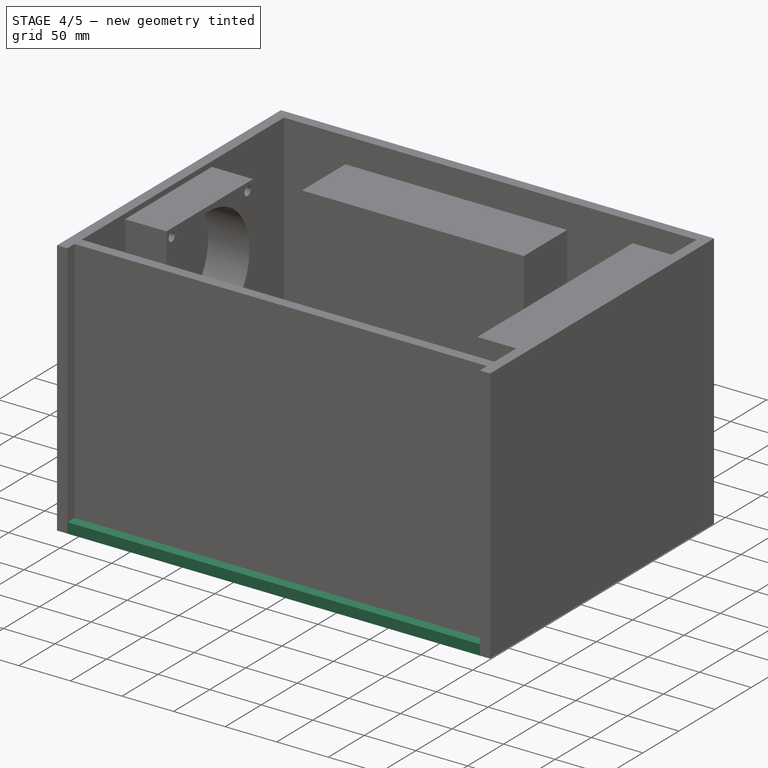
[diagram: stage 4 of 5 — iso view after this stage's code; geometry added in this stage tinted green]
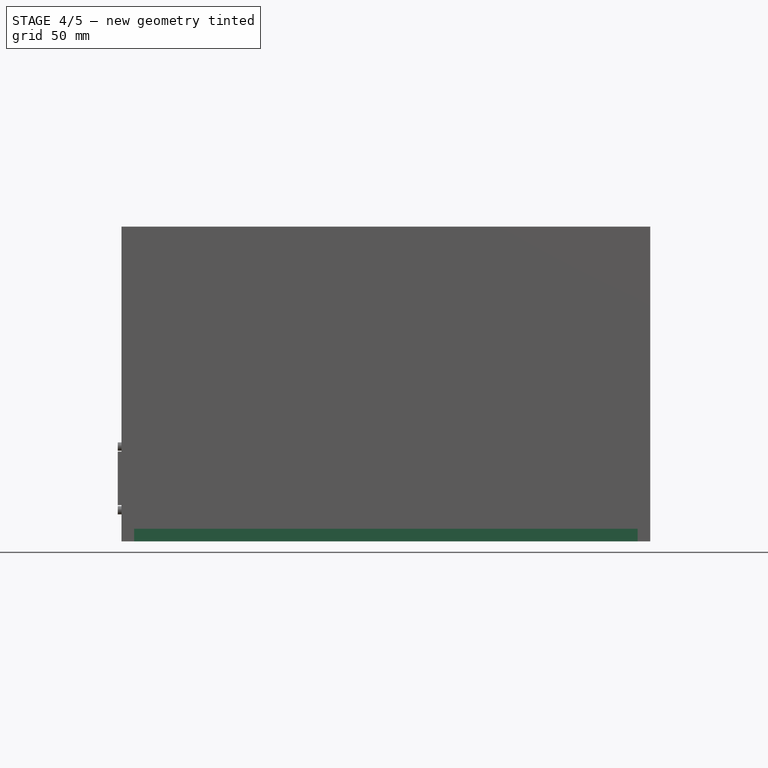
[diagram: stage 4 of 5 — front view after this stage's code; geometry added in this stage tinted green]
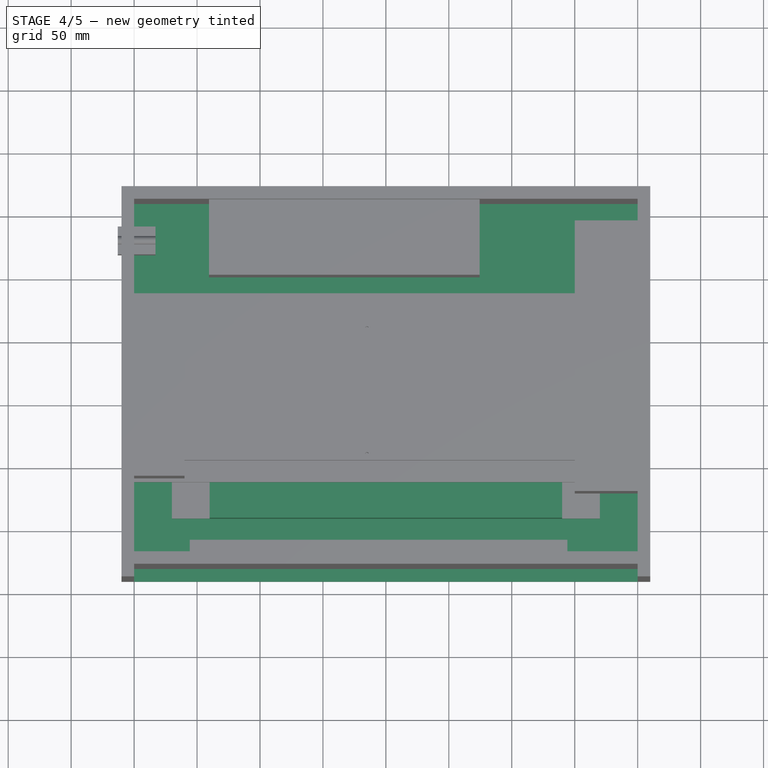
[diagram: stage 4 of 5 — top view after this stage's code; geometry added in this stage tinted green]
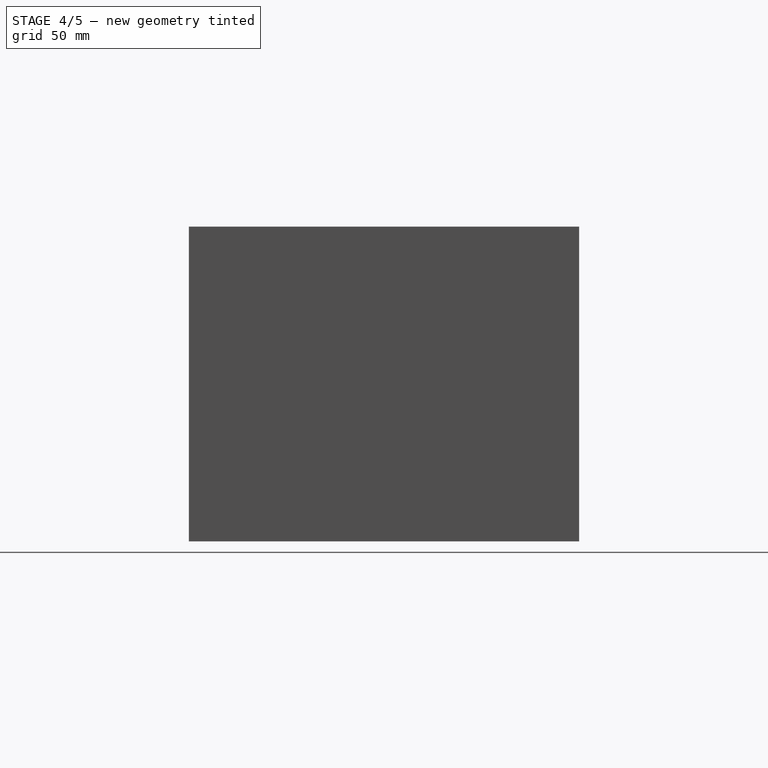
[diagram: stage 4 of 5 — right view after this stage's code; geometry added in this stage tinted green]
FEATURE [Sketcher::SketchObject] Sketch
  sketch-geometry (4):
    g0: LineSegment StartX=-140 StartY=90 StartZ=0 EndX=140 EndY=90 EndZ=0
    g1: LineSegment StartX=140 StartY=90 StartZ=0 EndX=140 EndY=-90 EndZ=0
    g2: LineSegment StartX=140 StartY=-90 StartZ=0 EndX=-140 EndY=-90 EndZ=0
    g3: LineSegment StartX=-140 StartY=-90 StartZ=0 EndX=-140 EndY=90 EndZ=0
  constraints (12):
    c: Coincident(g0,g1)
    c: Coincident(g1,g2)
    c: Coincident(g2,g3)
    c: Coincident(g3,g0)
    c: Horizontal(g0)
    c: Horizontal(g2)
    c: Vertical(g1)
    c: Vertical(g3)
    c: Distance(g1) = 180
    c: Distance(g0) = 280
    c: DistanceX(g0) = 140
    c: DistanceY(g0) = 90
FEATURE [PartDesign::Pad] Pad
  Length = 44
  Length2 = 100
  Sketch = -> Sketch
  Type = 0
FEATURE [Sketcher::SketchObject] Sketch002
  Placement = pos=(0,0,-10) rot=(1,0,0;3.14159rad)
  sketch-geometry (4):
    g0: LineSegment StartX=-200 StartY=140 StartZ=0 EndX=200 EndY=140 EndZ=0
    g1: LineSegment StartX=200 StartY=140 StartZ=0 EndX=200 EndY=-160 EndZ=0
    g2: LineSegment StartX=200 StartY=-160 StartZ=0 EndX=-200 EndY=-160 EndZ=0
    g3: LineSegment StartX=-200 StartY=-160 StartZ=0 EndX=-200 EndY=140 EndZ=0
  constraints (13):
    c: Coincident(g1,g2)
    c: Coincident(g2,g3)
    c: Coincident(g3,g0)
    c: Horizontal(g0)
    c: Horizontal(g2)
    c: Vertical(g1)
    c: Vertical(g3)
    c: DistanceX(g0) = 200
    c: DistanceX(g0,g0) = 400
    c: DistanceX(g1) = 200
    c: DistanceY(g1,g1) = 300
    c: DistanceY(g-1,g0) = 140
    c: DistanceY(g1,g-1) = 160
FEATURE [PartDesign::Pad] Pad002  label="底面板"
  Length = 10
  Length2 = 100
  Placement = pos=(0,0,-10) rot=(1,0,0;3.14159rad)
  Reversed = true
  Sketch = -> Sketch002
  Type = 0
FEATURE [Part::MultiFuse] Fusion  label="交换机"
  Shapes = -> [Pad001,Pad]
FEATURE [Part::MultiFuse] Fusion001  label="交换机加底面板"
  Shapes = -> [Pad002,Fusion]
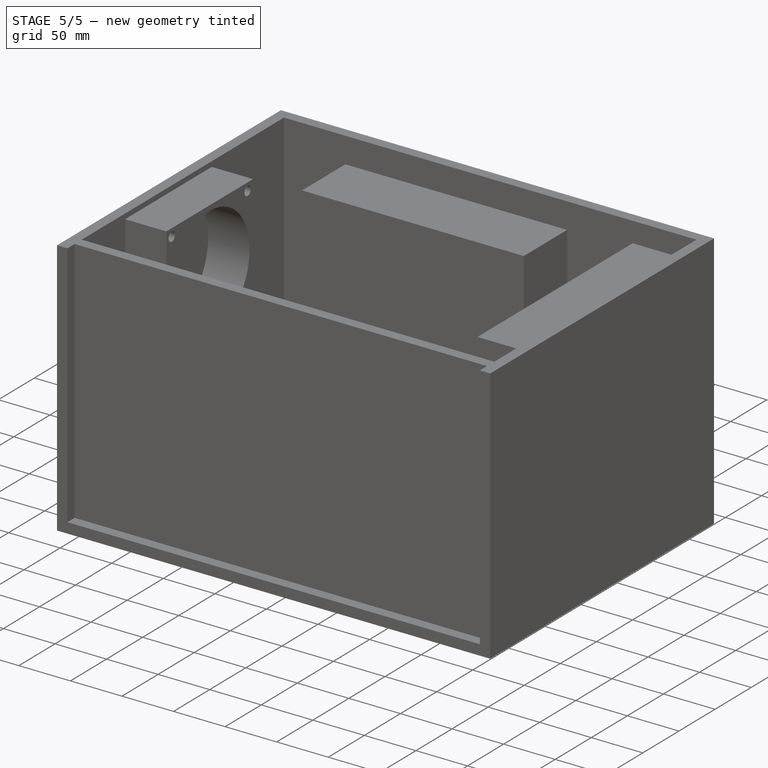
[diagram: stage 5 of 5 — iso view after this stage's code; geometry added in this stage tinted green]
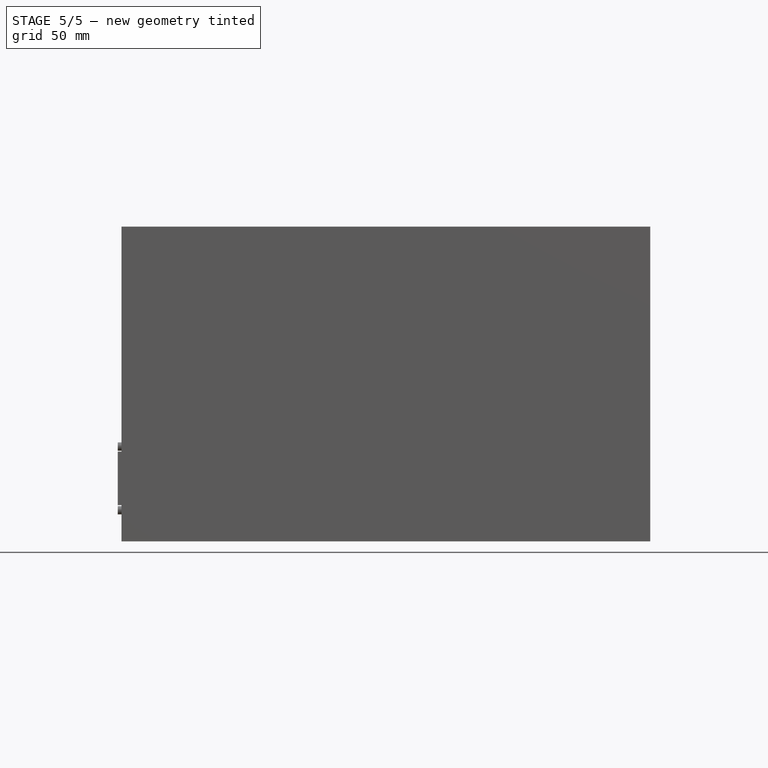
[diagram: stage 5 of 5 — front view after this stage's code; geometry added in this stage tinted green]
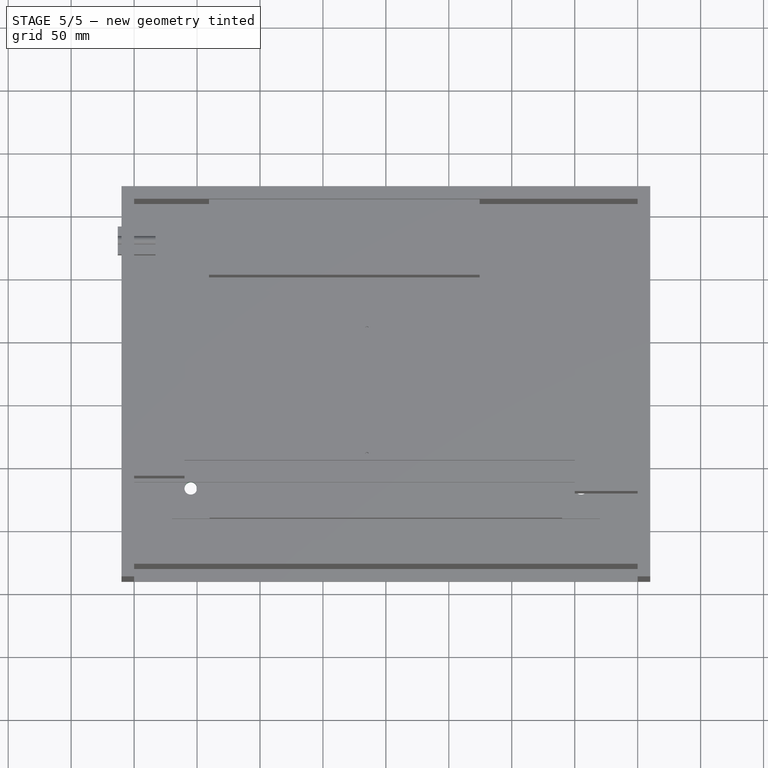
[diagram: stage 5 of 5 — top view after this stage's code; geometry added in this stage tinted green]
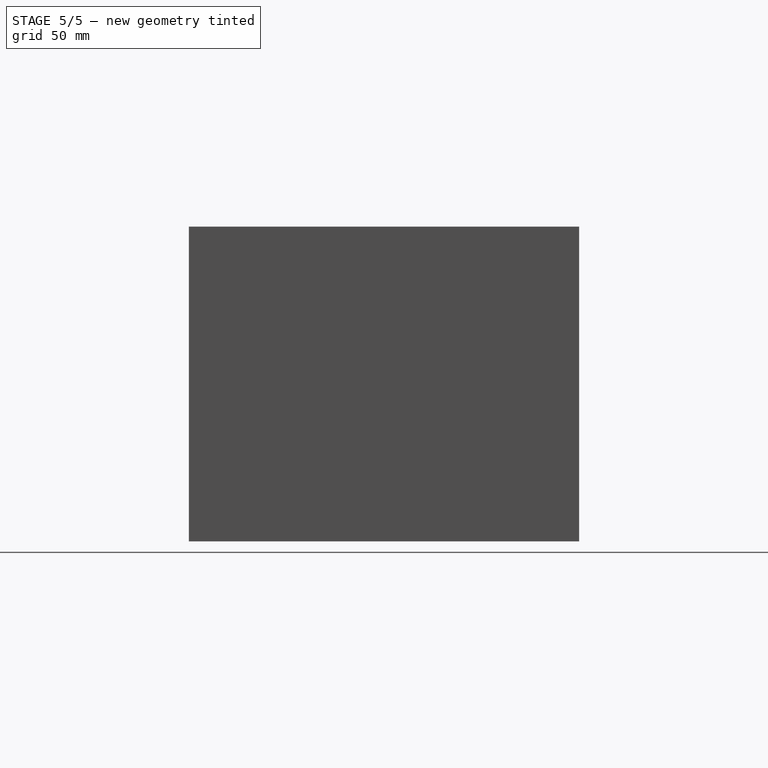
[diagram: stage 5 of 5 — right view after this stage's code; geometry added in this stage tinted green]
FEATURE [Part::Cylinder] Cylinder
  Angle = 360
  Height = 50
  Placement = pos=(155,-66,-25) rot=(0,0,1;0rad)
  Radius = 5
FEATURE [Part::Cylinder] Cylinder001
  Angle = 360
  Height = 50
  Placement = pos=(-155,-66,-30) rot=(0,0,1;0rad)
  Radius = 5
FEATURE [Part::Cut] Cut
  Base = -> Fusion001
  Tool = -> Cylinder
FEATURE [Part::Cut] Cut001  label="底面"
  Base = -> Cut
  Tool = -> Cylinder001
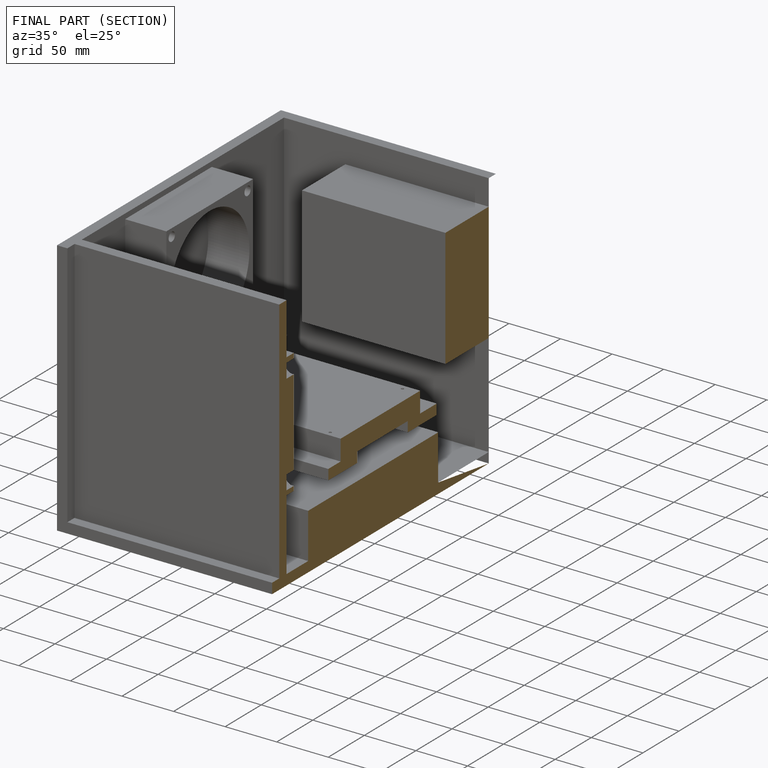
[diagram: finished part — half-section view (interior)]
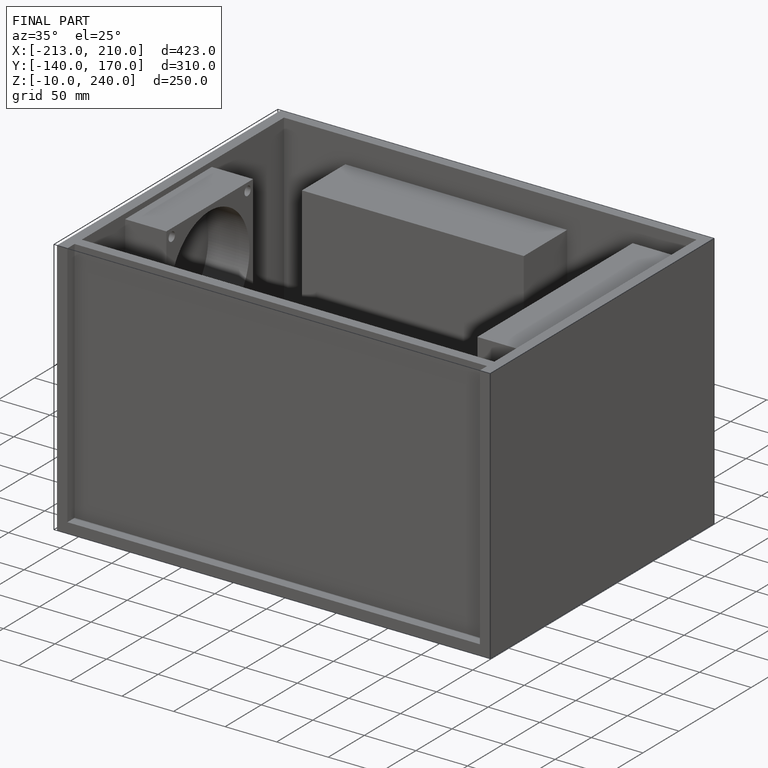
[diagram: finished part — iso view with bounding-box wireframe]
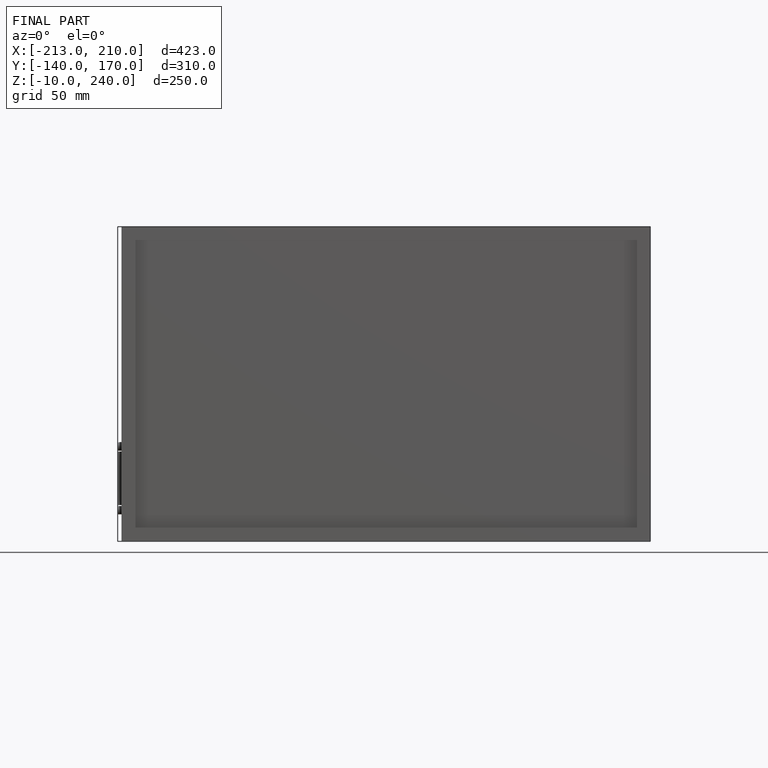
[diagram: finished part — front view with bounding-box wireframe]
